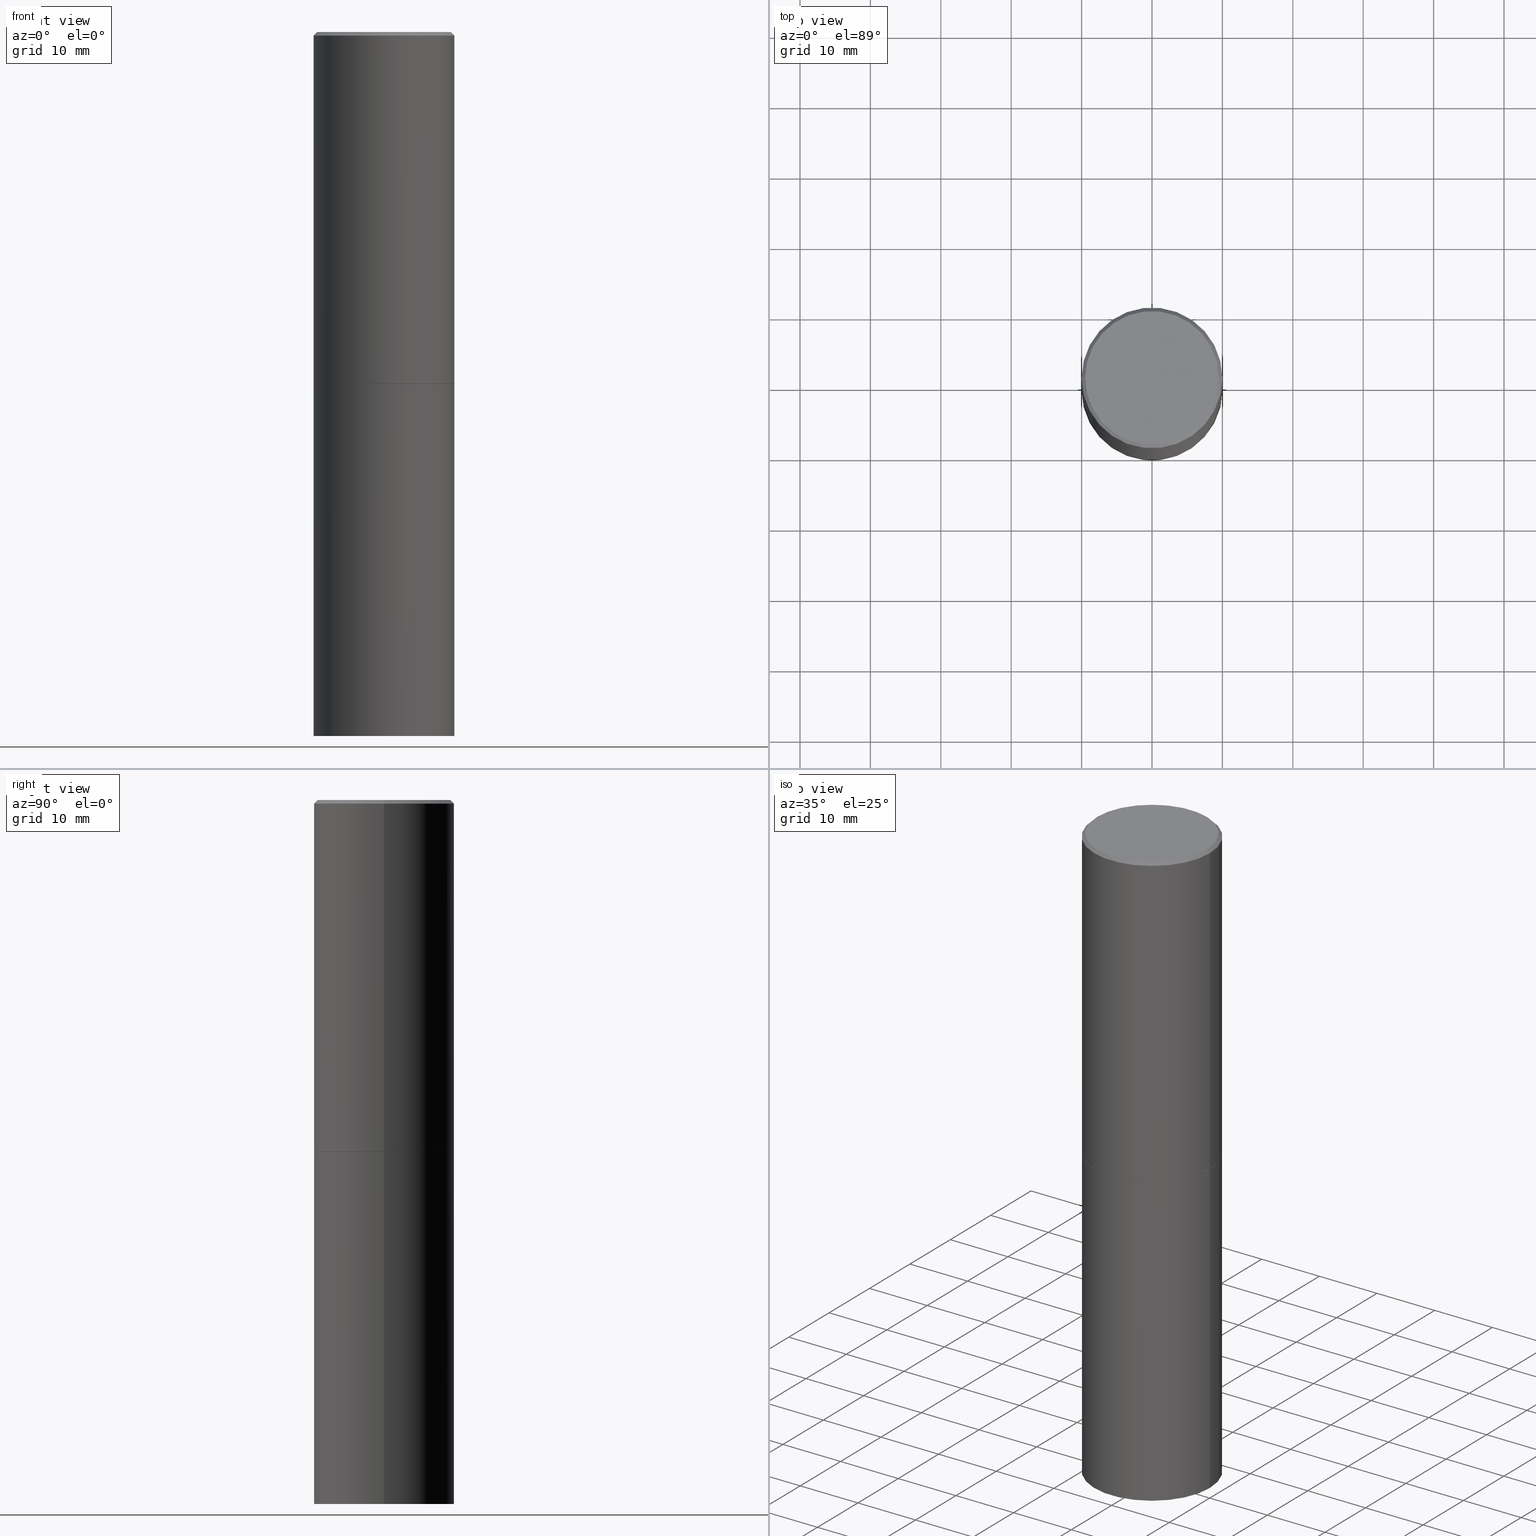
[diagram: canonical four-view strip — front | top / right | iso, engineering-drawing reading convention]
A machine part, canonical four-view strip (front | top / right | iso — engineering-drawing reading convention). The complete STEP part file that produces these views, byte-faithful:
ISO-10303-21;
HEADER;
FILE_DESCRIPTION (( 'STEP AP203' ),
    '1' );
FILE_NAME ('74506.STEP',
    '2024-02-29T12:17:18',
    ( '' ),
    ( '' ),
    'SwSTEP 2.0',
    'SolidWorks 2023',
    '' );
FILE_SCHEMA (( 'CONFIG_CONTROL_DESIGN' ));
ENDSEC;

DATA;
#1 = DATE_AND_TIME ( #126, #21 ) ;
#2 = ORIENTED_EDGE ( 'NONE', *, *, #211, .F. ) ;
#3 = ORIENTED_EDGE ( 'NONE', *, *, #325, .F. ) ;
#4 =( GEOMETRIC_REPRESENTATION_CONTEXT ( 3 ) GLOBAL_UNCERTAINTY_ASSIGNED_CONTEXT ( ( #58 ) ) GLOBAL_UNIT_ASSIGNED_CONTEXT ( ( #87, #287, #37 ) ) REPRESENTATION_CONTEXT ( 'NONE', 'WORKASPACE' ) );
#5 = ORIENTED_EDGE ( 'NONE', *, *, #166, .T. ) ;
#6 = EDGE_LOOP ( 'NONE', ( #251, #249, #153, #308 ) ) ;
#7 = CYLINDRICAL_SURFACE ( 'NONE', #267, 0.3936999999999999389 ) ;
#8 = PRODUCT_RELATED_PRODUCT_CATEGORY ( 'detail', '', ( #320 ) ) ;
#9 = DIRECTION ( 'NONE',  ( 1.000000000000000000, -6.982962677686265922E-15, 4.876176775795935793E-29 ) ) ;
#10 = LINE ( 'NONE', #59, #39 ) ;
#11 = DIRECTION ( 'NONE',  ( -2.445468806185136597E-29, 3.491481338843145583E-15, 1.000000000000000000 ) ) ;
#12 = ADVANCED_FACE ( 'NONE', ( #140 ), #7, .T. ) ;
#13 = CARTESIAN_POINT ( 'NONE',  ( -2.087702828670439639E-46, 2.980686340760894400E-32, 8.537024980200822558E-18 ) ) ;
#14 = ORIENTED_EDGE ( 'NONE', *, *, #145, .T. ) ;
#15 = FACE_OUTER_BOUND ( 'NONE', #68, .T. ) ;
#16 = CARTESIAN_POINT ( 'NONE',  ( -0.3736999999999997546, 2.644447966039787086E-15, 8.537024980182450727E-18 ) ) ;
#17 = APPROVAL_STATUS ( 'not_yet_approved' ) ;
#18 = ORIENTED_EDGE ( 'NONE', *, *, #334, .T. ) ;
#19 = DIRECTION ( 'NONE',  ( -2.445468806185136597E-29, 3.491481338843145583E-15, 1.000000000000000000 ) ) ;
#20 = VECTOR ( 'NONE', #312, 39.37007874015748143 ) ;
#21 = LOCAL_TIME ( 7, 17, 18.00000000000000000, #243 ) ;
#22 = CARTESIAN_POINT ( 'NONE',  ( 0.3926999999999999935, -9.615190459040128910E-15, -1.968500000000000139 ) ) ;
#23 = PERSON_AND_ORGANIZATION ( #119, #144 ) ;
#24 = CARTESIAN_POINT ( 'NONE',  ( 2.609533152651355831E-15, 0.3736999999999997546, -1.300498063835582419E-15 ) ) ;
#25 = CALENDAR_DATE ( 2024, 29, 2 ) ;
#26 = ORIENTED_EDGE ( 'NONE', *, *, #322, .F. ) ;
#27 = PERSON_AND_ORGANIZATION_ROLE ( 'creator' ) ;
#28 = AXIS2_PLACEMENT_3D ( 'NONE', #257, #86, #174 ) ;
#29 = EDGE_LOOP ( 'NONE', ( #265, #5, #2, #103 ) ) ;
#30 = EDGE_CURVE ( 'NONE', #194, #276, #318, .T. ) ;
#31 = ORIENTED_EDGE ( 'NONE', *, *, #125, .T. ) ;
#32 = ORIENTED_EDGE ( 'NONE', *, *, #211, .T. ) ;
#33 = APPLICATION_CONTEXT ( 'configuration controlled 3d designs of mechanical parts and assemblies' ) ;
#34 = CC_DESIGN_DATE_AND_TIME_ASSIGNMENT ( #214, #304, ( #250 ) ) ;
#35 = LOCAL_TIME ( 7, 17, 18.00000000000000000, #270 ) ;
#36 = CARTESIAN_POINT ( 'NONE',  ( 0.3937000000000000499, -9.622173421717814924E-15, -1.968500000000000139 ) ) ;
#37 =( NAMED_UNIT ( * ) SI_UNIT ( $, .STERADIAN. ) SOLID_ANGLE_UNIT ( ) );
#38 = CIRCLE ( 'NONE', #130, 0.3926999999999999935 ) ;
#39 = VECTOR ( 'NONE', #290, 39.37007874015748143 ) ;
#40 = DIRECTION ( 'NONE',  ( -2.445468806185136597E-29, 3.491481338843145583E-15, 1.000000000000000000 ) ) ;
#41 = ORIENTED_EDGE ( 'NONE', *, *, #277, .T. ) ;
#42 = LINE ( 'NONE', #22, #337 ) ;
#43 = ADVANCED_BREP_SHAPE_REPRESENTATION ( '74506', ( #307, #63, #74 ), #4 ) ;
#44 = CALENDAR_DATE ( 2024, 29, 2 ) ;
#45 = DIRECTION ( 'NONE',  ( -2.445468806185136597E-29, 3.491481338843145583E-15, 1.000000000000000000 ) ) ;
#46 = CARTESIAN_POINT ( 'NONE',  ( 4.890937612370294178E-31, -6.982962677686321191E-17, -0.02000000000000008715 ) ) ;
#47 = VECTOR ( 'NONE', #71, 39.37007874015748854 ) ;
#48 = CC_DESIGN_APPROVAL ( #117, ( #311 ) ) ;
#49 = DATE_TIME_ROLE ( 'classification_date' ) ;
#50 = DIRECTION ( 'NONE',  ( 1.000000000000000000, -6.982962677686265922E-15, 0.000000000000000000 ) ) ;
#51 = PERSON_AND_ORGANIZATION ( #119, #144 ) ;
#52 = EDGE_LOOP ( 'NONE', ( #222, #306 ) ) ;
#53 = AXIS2_PLACEMENT_3D ( 'NONE', #148, #76, #361 ) ;
#54 = LOCAL_TIME ( 7, 17, 18.00000000000000000, #190 ) ;
#55 = EDGE_LOOP ( 'NONE', ( #246, #18, #259, #179 ) ) ;
#56 = DIRECTION ( 'NONE',  ( -2.445468806185136597E-29, 3.491481338843145583E-15, 1.000000000000000000 ) ) ;
#57 = AXIS2_PLACEMENT_3D ( 'NONE', #227, #229, #352 ) ;
#58 = UNCERTAINTY_MEASURE_WITH_UNIT (LENGTH_MEASURE( 1.000000000000000082E-05 ), #87, 'distance_accuracy_value', 'NONE');
#59 = CARTESIAN_POINT ( 'NONE',  ( 0.3936999999999999389, -2.749192406205082822E-15, 1.919750796630859611E-29 ) ) ;
#60 = AXIS2_PLACEMENT_3D ( 'NONE', #157, #305, #238 ) ;
#61 =( LENGTH_UNIT ( ) NAMED_UNIT ( * ) SI_UNIT ( $, .METRE. ) );
#62 = VERTEX_POINT ( 'NONE', #313 ) ;
#63 = MANIFOLD_SOLID_BREP ( 'Body-Move/Copy2[2]', #152 ) ;
#64 = DIRECTION ( 'NONE',  ( -2.445468806185136597E-29, 3.491481338843145583E-15, 1.000000000000000000 ) ) ;
#65 = VERTEX_POINT ( 'NONE', #109 ) ;
#66 = CIRCLE ( 'NONE', #60, 0.3937000000000000499 ) ;
#67 = APPROVAL ( #272, 'UNSPECIFIED' ) ;
#68 = EDGE_LOOP ( 'NONE', ( #237, #161, #219, #344 ) ) ;
#69 = DIRECTION ( 'NONE',  ( -2.445468806185136877E-29, 3.491481338843145188E-15, 1.000000000000000000 ) ) ;
#70 = DIRECTION ( 'NONE',  ( -2.445468806185136597E-29, 3.491481338843145583E-15, 1.000000000000000000 ) ) ;
#71 = DIRECTION ( 'NONE',  ( -0.7071067811865715536, 7.493145998870439357E-15, 0.7071067811865232589 ) ) ;
#72 = ADVANCED_FACE ( 'NONE', ( #252 ), #83, .F. ) ;
#73 = CIRCLE ( 'NONE', #28, 0.3937000000000000499 ) ;
#74 = AXIS2_PLACEMENT_3D ( 'NONE', #113, #323, #92 ) ;
#75 = APPROVAL_ROLE ( '' ) ;
#76 = DIRECTION ( 'NONE',  ( -2.445468806185136597E-29, 3.491481338843145583E-15, 1.000000000000000000 ) ) ;
#77 = EDGE_LOOP ( 'NONE', ( #193, #82 ) ) ;
#78 = PERSON_AND_ORGANIZATION_ROLE ( 'classification_officer' ) ;
#79 = CARTESIAN_POINT ( 'NONE',  ( 4.813905344975441835E-29, -6.872981015512731707E-15, -1.968500000000000139 ) ) ;
#80 = AXIS2_PLACEMENT_3D ( 'NONE', #303, #297, #50 ) ;
#81 = ADVANCED_FACE ( 'NONE', ( #195 ), #85, .T. ) ;
#82 = ORIENTED_EDGE ( 'NONE', *, *, #125, .F. ) ;
#83 = PLANE ( 'NONE',  #208 ) ;
#84 = ORIENTED_EDGE ( 'NONE', *, *, #231, .F. ) ;
#85 = CYLINDRICAL_SURFACE ( 'NONE', #310, 0.3936999999999999389 ) ;
#86 = DIRECTION ( 'NONE',  ( -2.445468806185136597E-29, 3.491481338843145583E-15, 1.000000000000000000 ) ) ;
#87 =( CONVERSION_BASED_UNIT ( 'INCH', #171 ) LENGTH_UNIT ( ) NAMED_UNIT ( #351 ) );
#88 = FACE_OUTER_BOUND ( 'NONE', #176, .T. ) ;
#89 = DIRECTION ( 'NONE',  ( 1.000000000000000000, -6.982962677686266711E-15, 4.876212485538978481E-29 ) ) ;
#90 = CIRCLE ( 'NONE', #80, 0.3937000000000001609 ) ;
#91 = CARTESIAN_POINT ( 'NONE',  ( -0.3937000000000000499, 2.797406750687514786E-15, -1.936584745033356735E-29 ) ) ;
#92 = DIRECTION ( 'NONE',  ( 1.000000000000000000, 0.000000000000000000, 0.000000000000000000 ) ) ;
#93 = VERTEX_POINT ( 'NONE', #197 ) ;
#94 = LINE ( 'NONE', #209, #253 ) ;
#95 = AXIS2_PLACEMENT_3D ( 'NONE', #271, #102, #206 ) ;
#96 = AXIS2_PLACEMENT_3D ( 'NONE', #356, #142, #230 ) ;
#97 = VERTEX_POINT ( 'NONE', #319 ) ;
#98 = CARTESIAN_POINT ( 'NONE',  ( -0.3926999999999999935, -4.077381237834595527E-15, -1.968500000000000139 ) ) ;
#99 = DATE_AND_TIME ( #44, #35 ) ;
#100 = EDGE_CURVE ( 'NONE', #65, #97, #112, .T. ) ;
#101 = CARTESIAN_POINT ( 'NONE',  ( 4.890937612370294178E-31, -6.982962677686321191E-17, -0.02000000000000008715 ) ) ;
#102 = DIRECTION ( 'NONE',  ( -2.445468806185136597E-29, 3.491481338843145583E-15, 1.000000000000000000 ) ) ;
#103 = ORIENTED_EDGE ( 'NONE', *, *, #169, .F. ) ;
#104 = DATE_AND_TIME ( #186, #226 ) ;
#105 = ORIENTED_EDGE ( 'NONE', *, *, #100, .F. ) ;
#106 = EDGE_LOOP ( 'NONE', ( #360, #31, #138, #167 ) ) ;
#107 = EDGE_CURVE ( 'NONE', #294, #62, #73, .T. ) ;
#108 = EDGE_LOOP ( 'NONE', ( #165, #333, #273, #84 ) ) ;
#109 = CARTESIAN_POINT ( 'NONE',  ( 0.3736999999999997546, -2.667287895133366781E-15, 8.537024980219274507E-18 ) ) ;
#110 = CONICAL_SURFACE ( 'NONE', #302, 0.3936999999999997724, 0.7853981633974457255 ) ;
#111 = CC_DESIGN_APPROVAL ( #67, ( #286 ) ) ;
#112 = LINE ( 'NONE', #341, #20 ) ;
#113 = CARTESIAN_POINT ( 'NONE',  ( 0.000000000000000000, 0.000000000000000000, 0.000000000000000000 ) ) ;
#114 = FACE_OUTER_BOUND ( 'NONE', #134, .T. ) ;
#115 = DIRECTION ( 'NONE',  ( 1.000000000000000000, -6.982962677686265922E-15, 0.000000000000000000 ) ) ;
#116 = VECTOR ( 'NONE', #203, 39.37007874015748143 ) ;
#117 = APPROVAL ( #17, 'UNSPECIFIED' ) ;
#118 = DIRECTION ( 'NONE',  ( 2.438088387897960049E-29, -3.491481338843145188E-15, -1.000000000000000000 ) ) ;
#119 = PERSON ( 'UNSPECIFIED', 'UNSPECIFIED', 'UNSPECIFIED', ('UNSPECIFIED'), ('UNSPECIFIED'), ('UNSPECIFIED') ) ;
#120 = FACE_OUTER_BOUND ( 'NONE', #52, .T. ) ;
#121 = PERSON_AND_ORGANIZATION_ROLE ( 'design_supplier' ) ;
#122 = VERTEX_POINT ( 'NONE', #36 ) ;
#123 = DIRECTION ( 'NONE',  ( -2.445468806185136597E-29, 3.491481338843145583E-15, 1.000000000000000000 ) ) ;
#124 = AXIS2_PLACEMENT_3D ( 'NONE', #327, #348, #139 ) ;
#125 = EDGE_CURVE ( 'NONE', #163, #283, #279, .T. ) ;
#126 = CALENDAR_DATE ( 2024, 29, 2 ) ;
#127 = CARTESIAN_POINT ( 'NONE',  ( 4.813905344975441835E-29, -6.872981015512731707E-15, -1.968500000000000139 ) ) ;
#128 = CALENDAR_DATE ( 2024, 29, 2 ) ;
#129 = DIRECTION ( 'NONE',  ( 1.000000000000000000, -6.982962677686266711E-15, 4.876212485538978481E-29 ) ) ;
#130 = AXIS2_PLACEMENT_3D ( 'NONE', #156, #70, #181 ) ;
#131 = CC_DESIGN_APPROVAL ( #150, ( #250 ) ) ;
#132 = APPROVAL_ROLE ( '' ) ;
#133 = CC_DESIGN_PERSON_AND_ORGANIZATION_ASSIGNMENT ( #364, #78, ( #286 ) ) ;
#134 = EDGE_LOOP ( 'NONE', ( #41, #135 ) ) ;
#135 = ORIENTED_EDGE ( 'NONE', *, *, #314, .T. ) ;
#136 = APPROVAL_PERSON_ORGANIZATION ( #201, #150, #75 ) ;
#137 = ADVANCED_FACE ( 'NONE', ( #88 ), #232, .T. ) ;
#138 = ORIENTED_EDGE ( 'NONE', *, *, #169, .T. ) ;
#139 = DIRECTION ( 'NONE',  ( -1.000000000000000000, 6.982962677686265922E-15, -4.876176775795935793E-29 ) ) ;
#140 = FACE_OUTER_BOUND ( 'NONE', #108, .T. ) ;
#141 = AXIS2_PLACEMENT_3D ( 'NONE', #321, #11, #115 ) ;
#142 = DIRECTION ( 'NONE',  ( -2.445468806185136597E-29, 3.491481338843145583E-15, 1.000000000000000000 ) ) ;
#143 = LOCAL_TIME ( 7, 17, 18.00000000000000000, #301 ) ;
#144 = ORGANIZATION ( 'UNSPECIFIED', 'UNSPECIFIED', '' ) ;
#145 = EDGE_CURVE ( 'NONE', #291, #276, #199, .T. ) ;
#146 = APPLICATION_PROTOCOL_DEFINITION ( 'international standard', 'config_control_design', 1994, #316 ) ;
#147 = DIRECTION ( 'NONE',  ( 1.000000000000000000, -6.982962677686265922E-15, 4.876176775795935793E-29 ) ) ;
#148 = CARTESIAN_POINT ( 'NONE',  ( 4.813905344975441835E-29, -6.872981015512731707E-15, -1.968500000000000139 ) ) ;
#149 = DIRECTION ( 'NONE',  ( -2.445468806185136597E-29, 3.491481338843145583E-15, 1.000000000000000000 ) ) ;
#150 = APPROVAL ( #173, 'UNSPECIFIED' ) ;
#151 = ORIENTED_EDGE ( 'NONE', *, *, #107, .F. ) ;
#152 = CLOSED_SHELL ( 'NONE', ( #162, #81, #255, #263, #12, #223, #72, #204 ) ) ;
#153 = ORIENTED_EDGE ( 'NONE', *, *, #325, .T. ) ;
#154 = CARTESIAN_POINT ( 'NONE',  ( -0.3926999999999999935, -4.082679692182818718E-15, -1.968500000000000139 ) ) ;
#155 = DATE_AND_TIME ( #128, #143 ) ;
#156 = CARTESIAN_POINT ( 'NONE',  ( 4.813905344975441835E-29, -6.872981015512731707E-15, -1.968500000000000139 ) ) ;
#157 = CARTESIAN_POINT ( 'NONE',  ( 9.627810689950883669E-29, -1.374596203102546341E-14, -3.937000000000000277 ) ) ;
#158 = DIRECTION ( 'NONE',  ( -1.000000000000000000, 6.982962677686266711E-15, 0.000000000000000000 ) ) ;
#159 = PRODUCT_DEFINITION_SHAPE ( 'NONE', 'NONE',  #250 ) ;
#160 = PERSON_AND_ORGANIZATION ( #119, #144 ) ;
#161 = ORIENTED_EDGE ( 'NONE', *, *, #247, .T. ) ;
#162 = ADVANCED_FACE ( 'NONE', ( #289 ), #359, .T. ) ;
#163 = VERTEX_POINT ( 'NONE', #98 ) ;
#164 = AXIS2_PLACEMENT_3D ( 'NONE', #324, #118, #292 ) ;
#165 = ORIENTED_EDGE ( 'NONE', *, *, #145, .F. ) ;
#166 = EDGE_CURVE ( 'NONE', #163, #291, #268, .T. ) ;
#167 = ORIENTED_EDGE ( 'NONE', *, *, #282, .F. ) ;
#168 = CARTESIAN_POINT ( 'NONE',  ( 0.000000000000000000, 0.000000000000000000, 0.000000000000000000 ) ) ;
#169 = EDGE_CURVE ( 'NONE', #283, #188, #42, .T. ) ;
#170 = CIRCLE ( 'NONE', #141, 0.3937000000000001609 ) ;
#171 = LENGTH_MEASURE_WITH_UNIT ( LENGTH_MEASURE( 0.02539999999999999897 ), #61 );
#172 = CIRCLE ( 'NONE', #96, 0.3936999999999997724 ) ;
#173 = APPROVAL_STATUS ( 'not_yet_approved' ) ;
#174 = DIRECTION ( 'NONE',  ( 1.000000000000000000, -6.982962677686267499E-15, 0.000000000000000000 ) ) ;
#175 = ADVANCED_FACE ( 'NONE', ( #177 ), #335, .T. ) ;
#176 = EDGE_LOOP ( 'NONE', ( #151, #261 ) ) ;
#177 = FACE_OUTER_BOUND ( 'NONE', #55, .T. ) ;
#178 = MECHANICAL_CONTEXT ( 'NONE', #33, 'mechanical' ) ;
#179 = ORIENTED_EDGE ( 'NONE', *, *, #269, .F. ) ;
#180 = PLANE ( 'NONE',  #342 ) ;
#181 = DIRECTION ( 'NONE',  ( 1.000000000000000000, -6.982962677686268288E-15, 0.000000000000000000 ) ) ;
#182 = CC_DESIGN_DATE_AND_TIME_ASSIGNMENT ( #104, #49, ( #286 ) ) ;
#183 = PERSON_AND_ORGANIZATION ( #119, #144 ) ;
#184 = DIRECTION ( 'NONE',  ( 1.000000000000000000, -6.982962677686268288E-15, 0.000000000000000000 ) ) ;
#185 = AXIS2_PLACEMENT_3D ( 'NONE', #13, #149, #89 ) ;
#186 = CALENDAR_DATE ( 2024, 29, 2 ) ;
#187 = CARTESIAN_POINT ( 'NONE',  ( 4.890937612370294178E-31, -6.982962677686321191E-17, -0.02000000000000008715 ) ) ;
#188 = VERTEX_POINT ( 'NONE', #338 ) ;
#189 = CC_DESIGN_PERSON_AND_ORGANIZATION_ASSIGNMENT ( #160, #27, ( #250 ) ) ;
#190 = COORDINATED_UNIVERSAL_TIME_OFFSET ( 5, 0, .BEHIND. ) ;
#191 = ORIENTED_EDGE ( 'NONE', *, *, #30, .T. ) ;
#192 = APPROVAL_DATE_TIME ( #1, #117 ) ;
#193 = ORIENTED_EDGE ( 'NONE', *, *, #236, .F. ) ;
#194 = VERTEX_POINT ( 'NONE', #16 ) ;
#195 = FACE_OUTER_BOUND ( 'NONE', #326, .T. ) ;
#196 = CLOSED_SHELL ( 'NONE', ( #175, #137, #349, #300 ) ) ;
#197 = CARTESIAN_POINT ( 'NONE',  ( -0.3937000000000000499, -7.512064772581583563E-15, -1.968500000000000139 ) ) ;
#198 = CC_DESIGN_PERSON_AND_ORGANIZATION_ASSIGNMENT ( #340, #121, ( #311 ) ) ;
#199 = LINE ( 'NONE', #354, #116 ) ;
#200 = PERSON_AND_ORGANIZATION_ROLE ( 'design_owner' ) ;
#201 = PERSON_AND_ORGANIZATION ( #119, #144 ) ;
#202 = APPROVAL_PERSON_ORGANIZATION ( #23, #117, #132 ) ;
#203 = DIRECTION ( 'NONE',  ( -2.445468806185136877E-29, 3.491481338843145188E-15, 1.000000000000000000 ) ) ;
#204 = ADVANCED_FACE ( 'NONE', ( #120 ), #180, .F. ) ;
#205 = DIRECTION ( 'NONE',  ( -2.445468806185136877E-29, 3.491481338843145188E-15, 1.000000000000000000 ) ) ;
#206 = DIRECTION ( 'NONE',  ( 1.000000000000000000, -6.982962677686265133E-15, 0.000000000000000000 ) ) ;
#207 = EDGE_LOOP ( 'NONE', ( #105, #224, #191, #212 ) ) ;
#208 = AXIS2_PLACEMENT_3D ( 'NONE', #79, #284, #9 ) ;
#209 = CARTESIAN_POINT ( 'NONE',  ( 0.3937000000000000499, -2.749192406205083217E-15, 1.919750796630860172E-29 ) ) ;
#210 = AXIS2_PLACEMENT_3D ( 'NONE', #256, #40, #357 ) ;
#211 = EDGE_CURVE ( 'NONE', #188, #291, #90, .T. ) ;
#212 = ORIENTED_EDGE ( 'NONE', *, *, #231, .T. ) ;
#213 = CARTESIAN_POINT ( 'NONE',  ( 0.000000000000000000, 0.000000000000000000, 0.000000000000000000 ) ) ;
#214 = DATE_AND_TIME ( #25, #54 ) ;
#215 = CARTESIAN_POINT ( 'NONE',  ( -2.087702828670439639E-46, 2.980686340760894400E-32, 8.537024980200822558E-18 ) ) ;
#216 = DIRECTION ( 'NONE',  ( 2.438088387897960049E-29, -3.491481338843145188E-15, -1.000000000000000000 ) ) ;
#217 = CC_DESIGN_PERSON_AND_ORGANIZATION_ASSIGNMENT ( #228, #200, ( #320 ) ) ;
#218 = APPROVAL_DATE_TIME ( #155, #67 ) ;
#219 = ORIENTED_EDGE ( 'NONE', *, *, #269, .T. ) ;
#220 = CIRCLE ( 'NONE', #210, 0.3937000000000000499 ) ;
#221 = DIRECTION ( 'NONE',  ( -2.445468806185136597E-29, 3.491481338843145583E-15, 1.000000000000000000 ) ) ;
#222 = ORIENTED_EDGE ( 'NONE', *, *, #241, .T. ) ;
#223 = ADVANCED_FACE ( 'NONE', ( #363 ), #355, .T. ) ;
#224 = ORIENTED_EDGE ( 'NONE', *, *, #241, .F. ) ;
#225 = AXIS2_PLACEMENT_3D ( 'NONE', #187, #19, #240 ) ;
#226 = LOCAL_TIME ( 7, 17, 18.00000000000000000, #332 ) ;
#227 = CARTESIAN_POINT ( 'NONE',  ( 4.813905344975441835E-29, -6.872981015512731707E-15, -1.968500000000000139 ) ) ;
#228 = PERSON_AND_ORGANIZATION ( #119, #144 ) ;
#229 = DIRECTION ( 'NONE',  ( -2.445468806185136597E-29, 3.491481338843145583E-15, 1.000000000000000000 ) ) ;
#230 = DIRECTION ( 'NONE',  ( 1.000000000000000000, -6.982962677686266711E-15, 0.000000000000000000 ) ) ;
#231 = EDGE_CURVE ( 'NONE', #276, #97, #285, .T. ) ;
#232 = PLANE ( 'NONE',  #124 ) ;
#233 = VECTOR ( 'NONE', #347, 39.37007874015748143 ) ;
#234 = CARTESIAN_POINT ( 'NONE',  ( -0.3937000000000001609, -6.722528297878588461E-16, -1.967500000000000027 ) ) ;
#235 = DIRECTION ( 'NONE',  ( -1.000000000000000000, 6.982962677686266711E-15, 0.000000000000000000 ) ) ;
#236 = EDGE_CURVE ( 'NONE', #283, #163, #38, .T. ) ;
#237 = ORIENTED_EDGE ( 'NONE', *, *, #334, .F. ) ;
#238 = DIRECTION ( 'NONE',  ( 1.000000000000000000, -6.982962677686267499E-15, 0.000000000000000000 ) ) ;
#239 = APPROVAL_ROLE ( '' ) ;
#240 = DIRECTION ( 'NONE',  ( 1.000000000000000000, -6.982962677686266711E-15, 0.000000000000000000 ) ) ;
#241 = EDGE_CURVE ( 'NONE', #194, #65, #244, .T. ) ;
#242 = DIRECTION ( 'NONE',  ( 1.000000000000000000, -6.982962677686265922E-15, 4.876176775795935793E-29 ) ) ;
#243 = COORDINATED_UNIVERSAL_TIME_OFFSET ( 5, 0, .BEHIND. ) ;
#244 = CIRCLE ( 'NONE', #345, 0.3736999999999997546 ) ;
#245 = PERSON_AND_ORGANIZATION_ROLE ( 'creator' ) ;
#246 = ORIENTED_EDGE ( 'NONE', *, *, #107, .T. ) ;
#247 = EDGE_CURVE ( 'NONE', #62, #294, #66, .T. ) ;
#248 = AXIS2_PLACEMENT_3D ( 'NONE', #213, #45, #242 ) ;
#249 = ORIENTED_EDGE ( 'NONE', *, *, #100, .T. ) ;
#250 = PRODUCT_DEFINITION ( 'UNKNOWN', '', #311, #330 ) ;
#251 = ORIENTED_EDGE ( 'NONE', *, *, #366, .F. ) ;
#252 = FACE_OUTER_BOUND ( 'NONE', #77, .T. ) ;
#253 = VECTOR ( 'NONE', #69, 39.37007874015748143 ) ;
#254 = AXIS2_PLACEMENT_3D ( 'NONE', #260, #64, #147 ) ;
#255 = ADVANCED_FACE ( 'NONE', ( #295 ), #110, .T. ) ;
#256 = CARTESIAN_POINT ( 'NONE',  ( 4.813905344975441835E-29, -6.872981015512731707E-15, -1.968500000000000139 ) ) ;
#257 = CARTESIAN_POINT ( 'NONE',  ( 9.627810689950883669E-29, -1.374596203102546341E-14, -3.937000000000000277 ) ) ;
#258 = PLANE ( 'NONE',  #164 ) ;
#259 = ORIENTED_EDGE ( 'NONE', *, *, #277, .F. ) ;
#260 = CARTESIAN_POINT ( 'NONE',  ( 0.000000000000000000, 0.000000000000000000, 0.000000000000000000 ) ) ;
#261 = ORIENTED_EDGE ( 'NONE', *, *, #247, .F. ) ;
#262 = DIRECTION ( 'NONE',  ( 0.7071067811865715536, -2.468850131082509496E-15, 0.7071067811865232589 ) ) ;
#263 = ADVANCED_FACE ( 'NONE', ( #358 ), #275, .T. ) ;
#264 = SHAPE_DEFINITION_REPRESENTATION ( #159, #43 ) ;
#265 = ORIENTED_EDGE ( 'NONE', *, *, #236, .T. ) ;
#266 = DIRECTION ( 'NONE',  ( -2.445468806185136597E-29, 3.491481338843145583E-15, 1.000000000000000000 ) ) ;
#267 = AXIS2_PLACEMENT_3D ( 'NONE', #168, #221, #278 ) ;
#268 = LINE ( 'NONE', #154, #47 ) ;
#269 = EDGE_CURVE ( 'NONE', #294, #122, #94, .T. ) ;
#270 = COORDINATED_UNIVERSAL_TIME_OFFSET ( 5, 0, .BEHIND. ) ;
#271 = CARTESIAN_POINT ( 'NONE',  ( 4.813905344975441835E-29, -6.872981015512731707E-15, -1.968500000000000139 ) ) ;
#272 = APPROVAL_STATUS ( 'not_yet_approved' ) ;
#273 = ORIENTED_EDGE ( 'NONE', *, *, #322, .T. ) ;
#274 = SECURITY_CLASSIFICATION_LEVEL ( 'unclassified' ) ;
#275 = CONICAL_SURFACE ( 'NONE', #328, 0.3936999999999997724, 0.7853981633974457255 ) ;
#276 = VERTEX_POINT ( 'NONE', #336 ) ;
#277 = EDGE_CURVE ( 'NONE', #122, #93, #309, .T. ) ;
#278 = DIRECTION ( 'NONE',  ( 1.000000000000000000, -6.982962677686266711E-15, 4.876176775795935793E-29 ) ) ;
#279 = CIRCLE ( 'NONE', #57, 0.3926999999999999935 ) ;
#280 = CC_DESIGN_SECURITY_CLASSIFICATION ( #286, ( #311 ) ) ;
#281 = DIRECTION ( 'NONE',  ( 1.000000000000000000, -6.982962677686266711E-15, 4.876176775795935793E-29 ) ) ;
#282 = EDGE_CURVE ( 'NONE', #291, #188, #170, .T. ) ;
#283 = VERTEX_POINT ( 'NONE', #353 ) ;
#284 = DIRECTION ( 'NONE',  ( -2.438088387897960049E-29, 3.491481338843145188E-15, 1.000000000000000000 ) ) ;
#285 = CIRCLE ( 'NONE', #225, 0.3936999999999997724 ) ;
#286 = SECURITY_CLASSIFICATION ( '', '', #274 ) ;
#287 =( NAMED_UNIT ( * ) PLANE_ANGLE_UNIT ( ) SI_UNIT ( $, .RADIAN. ) );
#288 = CARTESIAN_POINT ( 'NONE',  ( 0.3937000000000000499, -1.649515443723054663E-14, -3.937000000000000277 ) ) ;
#289 = FACE_OUTER_BOUND ( 'NONE', #29, .T. ) ;
#290 = DIRECTION ( 'NONE',  ( -2.445468806185136877E-29, 3.491481338843145188E-15, 1.000000000000000000 ) ) ;
#291 = VERTEX_POINT ( 'NONE', #234 ) ;
#292 = DIRECTION ( 'NONE',  ( -1.000000000000000000, 6.982962677686265922E-15, -4.876176775795935793E-29 ) ) ;
#293 = CIRCLE ( 'NONE', #185, 0.3736999999999997546 ) ;
#294 = VERTEX_POINT ( 'NONE', #288 ) ;
#295 = FACE_OUTER_BOUND ( 'NONE', #6, .T. ) ;
#296 = CYLINDRICAL_SURFACE ( 'NONE', #254, 0.3937000000000000499 ) ;
#297 = DIRECTION ( 'NONE',  ( -2.445468806185136597E-29, 3.491481338843145583E-15, 1.000000000000000000 ) ) ;
#298 = APPROVAL_DATE_TIME ( #99, #150 ) ;
#299 = DIRECTION ( 'NONE',  ( 2.445468806185136597E-29, -3.491481338843145583E-15, -1.000000000000000000 ) ) ;
#300 = ADVANCED_FACE ( 'NONE', ( #15 ), #296, .T. ) ;
#301 = COORDINATED_UNIVERSAL_TIME_OFFSET ( 5, 0, .BEHIND. ) ;
#302 = AXIS2_PLACEMENT_3D ( 'NONE', #46, #299, #235 ) ;
#303 = CARTESIAN_POINT ( 'NONE',  ( 4.811459876169256232E-29, -6.869489534173888700E-15, -1.967500000000000027 ) ) ;
#304 = DATE_TIME_ROLE ( 'creation_date' ) ;
#305 = DIRECTION ( 'NONE',  ( -2.445468806185136597E-29, 3.491481338843145583E-15, 1.000000000000000000 ) ) ;
#306 = ORIENTED_EDGE ( 'NONE', *, *, #366, .T. ) ;
#307 = MANIFOLD_SOLID_BREP ( 'Body-Move/Copy2[1]', #196 ) ;
#308 = ORIENTED_EDGE ( 'NONE', *, *, #30, .F. ) ;
#309 = CIRCLE ( 'NONE', #95, 0.3937000000000000499 ) ;
#310 = AXIS2_PLACEMENT_3D ( 'NONE', #315, #56, #281 ) ;
#311 = PRODUCT_DEFINITION_FORMATION_WITH_SPECIFIED_SOURCE ( 'ANY', '', #320, .NOT_KNOWN. ) ;
#312 = DIRECTION ( 'NONE',  ( 0.7071067811865456854, -7.319954787623249734E-15, -0.7071067811865493491 ) ) ;
#313 = CARTESIAN_POINT ( 'NONE',  ( -0.3937000000000000499, -7.512064772581583563E-15, -3.937000000000000277 ) ) ;
#314 = EDGE_CURVE ( 'NONE', #93, #122, #220, .T. ) ;
#315 = CARTESIAN_POINT ( 'NONE',  ( 0.000000000000000000, 0.000000000000000000, 0.000000000000000000 ) ) ;
#316 = APPLICATION_CONTEXT ( 'configuration controlled 3d designs of mechanical parts and assemblies' ) ;
#317 = VECTOR ( 'NONE', #205, 39.37007874015748143 ) ;
#318 = LINE ( 'NONE', #343, #233 ) ;
#319 = CARTESIAN_POINT ( 'NONE',  ( 0.3936999999999997724, -2.770807688499513762E-15, -0.02000000000000008715 ) ) ;
#320 = PRODUCT ( '74506', '74506', '', ( #178 ) ) ;
#321 = CARTESIAN_POINT ( 'NONE',  ( 4.811459876169256232E-29, -6.869489534173888700E-15, -1.967500000000000027 ) ) ;
#322 = EDGE_CURVE ( 'NONE', #188, #97, #10, .T. ) ;
#323 = DIRECTION ( 'NONE',  ( 0.000000000000000000, 0.000000000000000000, 1.000000000000000000 ) ) ;
#324 = CARTESIAN_POINT ( 'NONE',  ( 2.749192406205130943E-15, 0.3936999999999931110, -1.968500000000001471 ) ) ;
#325 = EDGE_CURVE ( 'NONE', #97, #276, #172, .T. ) ;
#326 = EDGE_LOOP ( 'NONE', ( #32, #14, #3, #26 ) ) ;
#327 = CARTESIAN_POINT ( 'NONE',  ( 2.749192406205179063E-15, 0.3936999999999862832, -3.937000000000001609 ) ) ;
#328 = AXIS2_PLACEMENT_3D ( 'NONE', #101, #362, #158 ) ;
#329 = APPLICATION_PROTOCOL_DEFINITION ( 'international standard', 'config_control_design', 1994, #33 ) ;
#330 = DESIGN_CONTEXT ( 'detailed design', #316, 'design' ) ;
#331 = DIRECTION ( 'NONE',  ( -1.000000000000000000, 6.982962677686265922E-15, -4.876176775795935793E-29 ) ) ;
#332 = COORDINATED_UNIVERSAL_TIME_OFFSET ( 5, 0, .BEHIND. ) ;
#333 = ORIENTED_EDGE ( 'NONE', *, *, #282, .T. ) ;
#334 = EDGE_CURVE ( 'NONE', #62, #93, #350, .T. ) ;
#335 = CYLINDRICAL_SURFACE ( 'NONE', #248, 0.3937000000000000499 ) ;
#336 = CARTESIAN_POINT ( 'NONE',  ( -0.3936999999999997724, 2.679362779428217946E-15, -0.02000000000000008715 ) ) ;
#337 = VECTOR ( 'NONE', #262, 39.37007874015748854 ) ;
#338 = CARTESIAN_POINT ( 'NONE',  ( 0.3937000000000001609, -9.618681940378971917E-15, -1.967500000000000027 ) ) ;
#339 = CC_DESIGN_PERSON_AND_ORGANIZATION_ASSIGNMENT ( #183, #245, ( #311 ) ) ;
#340 = PERSON_AND_ORGANIZATION ( #119, #144 ) ;
#341 = CARTESIAN_POINT ( 'NONE',  ( 0.3936999999999997724, -2.770807688499513762E-15, -0.02000000000000008715 ) ) ;
#342 = AXIS2_PLACEMENT_3D ( 'NONE', #24, #216, #331 ) ;
#343 = CARTESIAN_POINT ( 'NONE',  ( -0.3936999999999997724, 2.679362779428217946E-15, -0.02000000000000008715 ) ) ;
#344 = ORIENTED_EDGE ( 'NONE', *, *, #314, .F. ) ;
#345 = AXIS2_PLACEMENT_3D ( 'NONE', #215, #123, #129 ) ;
#346 = APPROVAL_PERSON_ORGANIZATION ( #51, #67, #239 ) ;
#347 = DIRECTION ( 'NONE',  ( -0.7071067811865456854, 2.468850131082237733E-15, -0.7071067811865493491 ) ) ;
#348 = DIRECTION ( 'NONE',  ( 2.438088387897960049E-29, -3.491481338843145188E-15, -1.000000000000000000 ) ) ;
#349 = ADVANCED_FACE ( 'NONE', ( #114 ), #258, .F. ) ;
#350 = LINE ( 'NONE', #91, #317 ) ;
#351 = DIMENSIONAL_EXPONENTS ( 1.000000000000000000, 0.000000000000000000, 0.000000000000000000, 0.000000000000000000, 0.000000000000000000, 0.000000000000000000, 0.000000000000000000 ) ;
#352 = DIRECTION ( 'NONE',  ( 1.000000000000000000, -6.982962677686268288E-15, 0.000000000000000000 ) ) ;
#353 = CARTESIAN_POINT ( 'NONE',  ( 0.3926999999999999935, -9.615190459040128910E-15, -1.968500000000000139 ) ) ;
#354 = CARTESIAN_POINT ( 'NONE',  ( -0.3936999999999999389, 2.797406750687513998E-15, -1.936584745033356455E-29 ) ) ;
#355 = CONICAL_SURFACE ( 'NONE', #365, 0.3926999999999999935, 0.7853981633974824739 ) ;
#356 = CARTESIAN_POINT ( 'NONE',  ( 4.890937612370294178E-31, -6.982962677686321191E-17, -0.02000000000000008715 ) ) ;
#357 = DIRECTION ( 'NONE',  ( 1.000000000000000000, -6.982962677686265133E-15, 0.000000000000000000 ) ) ;
#358 = FACE_OUTER_BOUND ( 'NONE', #207, .T. ) ;
#359 = CONICAL_SURFACE ( 'NONE', #53, 0.3926999999999999935, 0.7853981633974824739 ) ;
#360 = ORIENTED_EDGE ( 'NONE', *, *, #166, .F. ) ;
#361 = DIRECTION ( 'NONE',  ( 1.000000000000000000, -6.982962677686268288E-15, 0.000000000000000000 ) ) ;
#362 = DIRECTION ( 'NONE',  ( 2.445468806185136597E-29, -3.491481338843145583E-15, -1.000000000000000000 ) ) ;
#363 = FACE_OUTER_BOUND ( 'NONE', #106, .T. ) ;
#364 = PERSON_AND_ORGANIZATION ( #119, #144 ) ;
#365 = AXIS2_PLACEMENT_3D ( 'NONE', #127, #266, #184 ) ;
#366 = EDGE_CURVE ( 'NONE', #65, #194, #293, .T. ) ;
ENDSEC;
END-ISO-10303-21;
